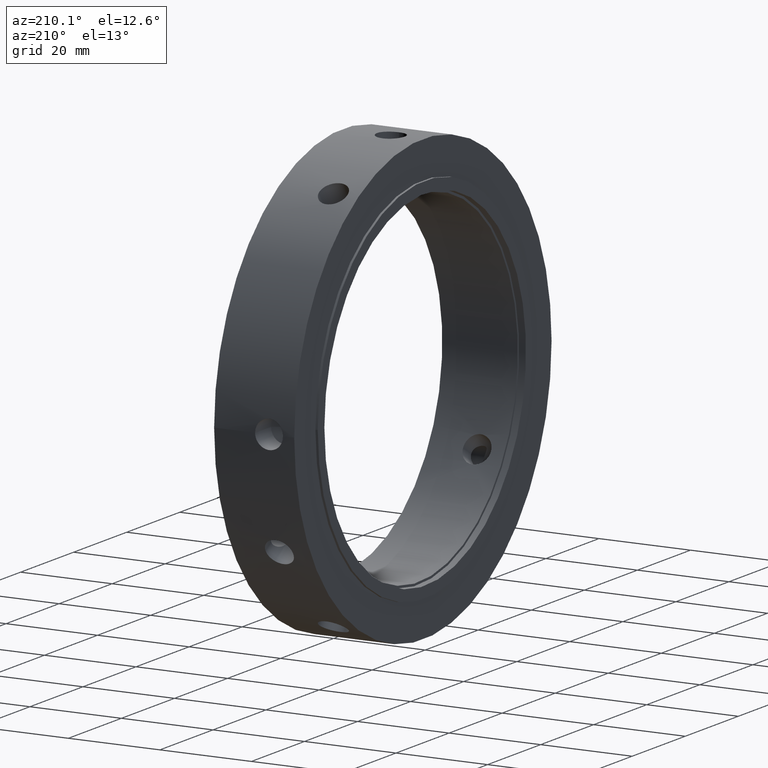
[diagram: clean part render]
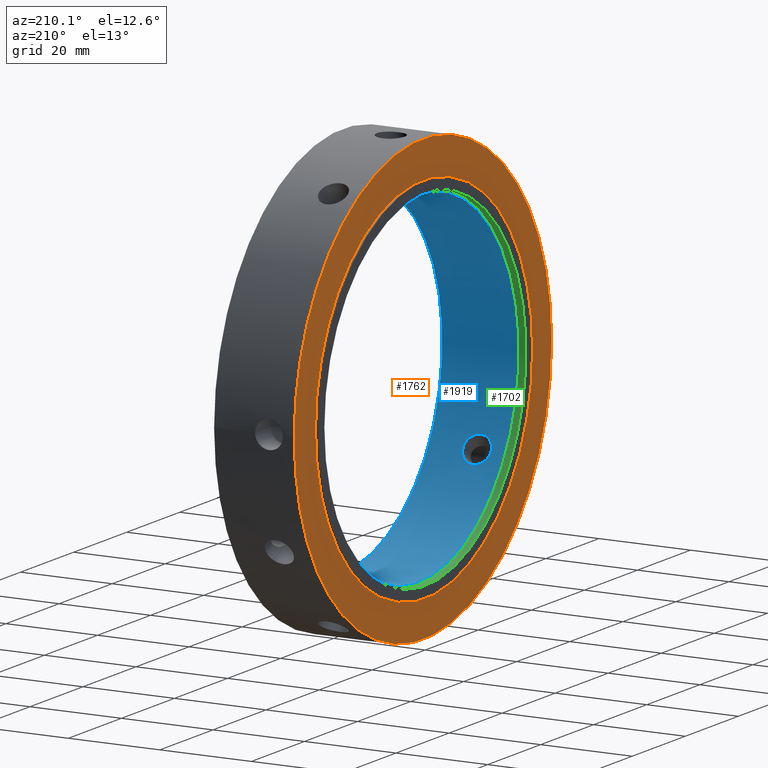
[diagram: same view with three faces highlighted in distinct colors, each labeled with its STEP entity id]
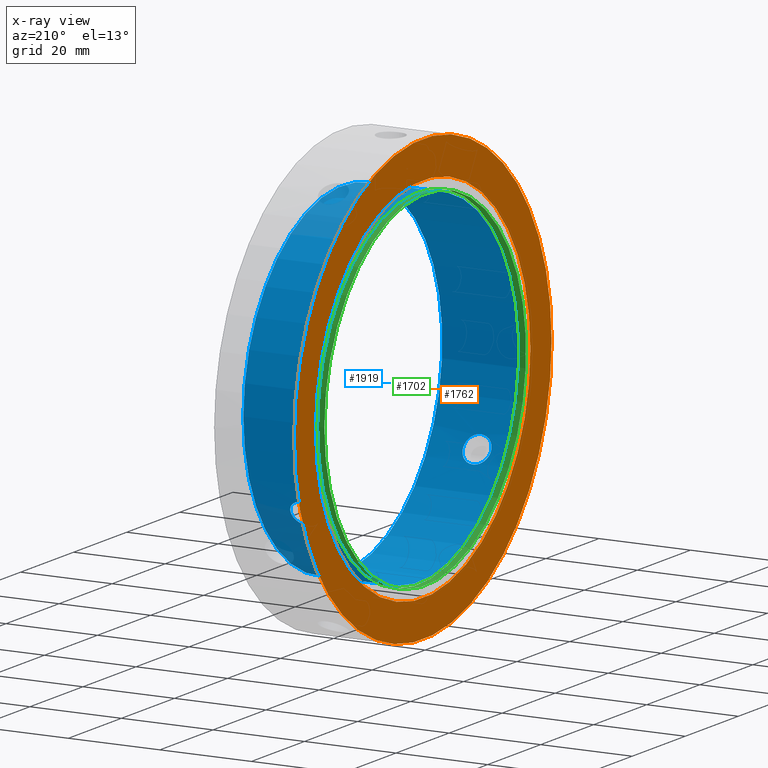
[diagram: x-ray of the same camera — body ghosted, the three highlighted faces saturated]
A machine part, auxiliary view with three faces highlighted in distinct colors.
The next image is the same camera in x-ray (body ghosted, the three faces saturated) — at least one of them is partly hidden behind the body in this view.
Their STEP definitions:

[orange] entity #1762 — the highlighted planar face has unit normal (-1, 0, 0).
#1728=CARTESIAN_POINT('',(0.499999999999989,40.5,0.0));
#1729=VERTEX_POINT('',#1728);
#1730=CARTESIAN_POINT('',(0.499999999999989,0.0,0.0));
#1731=DIRECTION('',(1.0,0.0,0.0));
#1732=DIRECTION('',(0.0,1.0,0.0));
#1733=AXIS2_PLACEMENT_3D('',#1730,#1731,#1732);
#1734=CIRCLE('',#1733,40.5);
#1735=EDGE_CURVE('',#1729,#1729,#1734,.T.);
#1743=CARTESIAN_POINT('',(0.499999999999989,44.5,0.0));
#1744=DIRECTION('',(-1.0,0.0,0.0));
#1745=DIRECTION('',(0.0,0.0,1.0));
#1746=AXIS2_PLACEMENT_3D('',#1743,#1744,#1745);
#1747=PLANE('',#1746);
#1748=CARTESIAN_POINT('',(0.499999999999989,48.500000000000007,0.0));
#1749=VERTEX_POINT('',#1748);
#1750=CARTESIAN_POINT('',(0.499999999999989,0.0,0.0));
#1751=DIRECTION('',(1.0,0.0,0.0));
#1752=DIRECTION('',(0.0,1.0,0.0));
#1753=AXIS2_PLACEMENT_3D('',#1750,#1751,#1752);
#1754=CIRCLE('',#1753,48.500000000000007);
#1755=EDGE_CURVE('',#1749,#1749,#1754,.T.);
#1756=ORIENTED_EDGE('',*,*,#1755,.F.);
#1757=EDGE_LOOP('',(#1756));
#1758=FACE_OUTER_BOUND('',#1757,.T.);
#1759=ORIENTED_EDGE('',*,*,#1735,.T.);
#1760=EDGE_LOOP('',(#1759));
#1761=FACE_BOUND('',#1760,.T.);
#1762=ADVANCED_FACE('',(#1758,#1761),#1747,.T.);

[blue] entity #1919 — the highlighted cylindrical surface (bore or boss wall) has radius 37.5 mm, axis along (1, 0, 0).
#1299=CARTESIAN_POINT('',(7.499999999999987,33.893358392108787,-16.046502949367778));
#1300=VERTEX_POINT('',#1299);
#1301=CARTESIAN_POINT('',(7.499999999999987,33.893358392108787,-16.046502949367763));
#1302=CARTESIAN_POINT('',(7.883146705738793,33.893358392108787,-16.046502949367763));
#1303=CARTESIAN_POINT('',(8.291716020119942,33.860682759014232,-16.116095375475897));
#1304=CARTESIAN_POINT('',(9.043122725491655,33.725340298830858,-16.397432381819709));
#1305=CARTESIAN_POINT('',(9.38597453830624,33.622383589629543,-16.608998887362141));
#1306=CARTESIAN_POINT('',(9.927376425008257,33.378692571843644,-17.093460862698713));
#1307=CARTESIAN_POINT('',(10.162077059469329,33.221639229656503,-17.398677451379385));
#1308=CARTESIAN_POINT('',(10.473393522908822,32.866203643286994,-18.061117026326354));
#1309=CARTESIAN_POINT('',(10.549999999999988,32.667525710347391,-18.418185712115751));
#1310=CARTESIAN_POINT('',(10.549999999999983,32.284379573485509,-19.081814287884271));
#1311=CARTESIAN_POINT('',(10.473393522908822,32.074487987165774,-19.432408767876048));
#1312=CARTESIAN_POINT('',(10.162077059469329,31.678516279974289,-20.071444802554534));
#1313=CARTESIAN_POINT('',(9.927376425008252,31.492717631613971,-20.36006528097818));
#1314=CARTESIAN_POINT('',(9.38597453830624,31.195006762697854,-20.813338880723144));
#1315=CARTESIAN_POINT('',(9.043122725491656,31.063263148908863,-21.008285259152753));
#1316=CARTESIAN_POINT('',(8.291716020119944,30.887289384482145,-21.266163771054142));
#1317=CARTESIAN_POINT('',(7.883146705738793,30.843358392108801,-21.329257912452846));
#1318=CARTESIAN_POINT('',(7.116853294261181,30.843358392108801,-21.329257912452846));
#1319=CARTESIAN_POINT('',(6.708283979880028,30.887289384482145,-21.266163771054142));
#1320=CARTESIAN_POINT('',(5.956877274508317,31.063263148908863,-21.008285259152753));
#1321=CARTESIAN_POINT('',(5.614025461693735,31.195006762697854,-20.813338880723144));
#1322=CARTESIAN_POINT('',(5.072623574991722,31.492717631613971,-20.360065280978176));
#1323=CARTESIAN_POINT('',(4.837922940530644,31.678516279974293,-20.071444802554534));
#1324=CARTESIAN_POINT('',(4.526606477091153,32.074487987165774,-19.432408767876044));
#1325=CARTESIAN_POINT('',(4.449999999999988,32.284379573485509,-19.081814287884271));
#1326=CARTESIAN_POINT('',(4.449999999999986,32.667525710347391,-18.418185712115747));
#1327=CARTESIAN_POINT('',(4.526606477091152,32.866203643286994,-18.06111702632635));
#1328=CARTESIAN_POINT('',(4.837922940530644,33.221639229656503,-17.398677451379385));
#1329=CARTESIAN_POINT('',(5.072623574991718,33.378692571843644,-17.093460862698713));
#1330=CARTESIAN_POINT('',(5.614025461693734,33.622383589629543,-16.608998887362141));
#1331=CARTESIAN_POINT('',(5.956877274508319,33.725340298830858,-16.397432381819709));
#1332=CARTESIAN_POINT('',(6.708283979880031,33.860682759014232,-16.116095375475897));
#1333=CARTESIAN_POINT('',(7.116853294261181,33.893358392108787,-16.046502949367763));
#1334=CARTESIAN_POINT('',(7.499999999999987,33.893358392108787,-16.046502949367763));
#1335=B_SPLINE_CURVE_WITH_KNOTS('',3,(#1301,#1302,#1303,#1304,#1305,#1306,#1307,#1308,#1309,#1310,#1311,#1312,#1313,#1314,#1315,#1316,#1317,#1318,#1319,#1320,#1321,#1322,#1323,#1324,#1325,#1326,#1327,#1328,#1329,#1330,#1331,#1332,#1333,#1334),.UNSPECIFIED.,.T.,.U.,(4,2,2,2,2,2,2,2,2,2,2,2,2,2,2,2,4),(0.0,0.114944011721642,0.229888023443284,0.344831864501849,0.459775705560414,0.574719546618979,0.689663387677544,0.804607399399186,0.919551411120828,1.03449542284247,1.149439434564112,1.264383275622676,1.379327116681241,1.494270957739806,1.609214798798371,1.724158810520013,1.839102822241655),.UNSPECIFIED.);
#1336=EDGE_CURVE('',#1300,#1300,#1335,.T.);
#1456=CARTESIAN_POINT('',(7.499999999999987,-30.843358392108801,-21.329257912452828));
#1457=VERTEX_POINT('',#1456);
#1458=CARTESIAN_POINT('',(7.499999999999986,-30.843358392108804,-21.329257912452825));
#1459=CARTESIAN_POINT('',(7.883146705738792,-30.843358392108804,-21.329257912452825));
#1460=CARTESIAN_POINT('',(8.291716020119944,-30.887289384482152,-21.266163771054131));
#1461=CARTESIAN_POINT('',(9.043122725491656,-31.063263148908874,-21.008285259152739));
#1462=CARTESIAN_POINT('',(9.38597453830624,-31.195006762697854,-20.813338880723123));
#1463=CARTESIAN_POINT('',(9.927376425008252,-31.492717631613964,-20.360065280978155));
#1464=CARTESIAN_POINT('',(10.162077059469333,-31.678516279974303,-20.07144480255452));
#1465=CARTESIAN_POINT('',(10.47339352290882,-32.074487987165789,-19.432408767876026));
#1466=CARTESIAN_POINT('',(10.549999999999983,-32.284379573485509,-19.081814287884246));
#1467=CARTESIAN_POINT('',(10.549999999999988,-32.667525710347398,-18.418185712115729));
#1468=CARTESIAN_POINT('',(10.47339352290882,-32.866203643287008,-18.06111702632634));
#1469=CARTESIAN_POINT('',(10.162077059469333,-33.221639229656518,-17.398677451379374));
#1470=CARTESIAN_POINT('',(9.927376425008255,-33.378692571843629,-17.093460862698695));
#1471=CARTESIAN_POINT('',(9.385974538306241,-33.622383589629536,-16.608998887362119));
#1472=CARTESIAN_POINT('',(9.04312272549166,-33.725340298830865,-16.397432381819694));
#1473=CARTESIAN_POINT('',(8.291716020119948,-33.860682759014239,-16.116095375475883));
#1474=CARTESIAN_POINT('',(7.883146705738793,-33.893358392108787,-16.046502949367746));
#1475=CARTESIAN_POINT('',(7.116853294261181,-33.893358392108787,-16.046502949367746));
#1476=CARTESIAN_POINT('',(6.708283979880027,-33.860682759014239,-16.116095375475883));
#1477=CARTESIAN_POINT('',(5.956877274508314,-33.725340298830865,-16.397432381819694));
#1478=CARTESIAN_POINT('',(5.614025461693732,-33.622383589629536,-16.608998887362119));
#1479=CARTESIAN_POINT('',(5.072623574991719,-33.378692571843629,-17.093460862698695));
#1480=CARTESIAN_POINT('',(4.837922940530638,-33.221639229656518,-17.398677451379378));
#1481=CARTESIAN_POINT('',(4.526606477091151,-32.866203643287008,-18.061117026326347));
#1482=CARTESIAN_POINT('',(4.449999999999986,-32.667525710347391,-18.418185712115729));
#1483=CARTESIAN_POINT('',(4.449999999999989,-32.284379573485509,-19.081814287884249));
#1484=CARTESIAN_POINT('',(4.526606477091152,-32.074487987165782,-19.432408767876034));
#1485=CARTESIAN_POINT('',(4.837922940530643,-31.678516279974296,-20.07144480255452));
#1486=CARTESIAN_POINT('',(5.072623574991722,-31.492717631613971,-20.360065280978155));
#1487=CARTESIAN_POINT('',(5.614025461693736,-31.195006762697854,-20.813338880723123));
#1488=CARTESIAN_POINT('',(5.956877274508322,-31.063263148908877,-21.008285259152743));
#1489=CARTESIAN_POINT('',(6.708283979880032,-30.887289384482159,-21.266163771054135));
#1490=CARTESIAN_POINT('',(7.116853294261181,-30.843358392108801,-21.329257912452828));
#1491=CARTESIAN_POINT('',(7.499999999999987,-30.843358392108801,-21.329257912452828));
#1492=B_SPLINE_CURVE_WITH_KNOTS('',3,(#1458,#1459,#1460,#1461,#1462,#1463,#1464,#1465,#1466,#1467,#1468,#1469,#1470,#1471,#1472,#1473,#1474,#1475,#1476,#1477,#1478,#1479,#1480,#1481,#1482,#1483,#1484,#1485,#1486,#1487,#1488,#1489,#1490,#1491),.UNSPECIFIED.,.T.,.U.,(4,2,2,2,2,2,2,2,2,2,2,2,2,2,2,2,4),(0.0,0.114944011721642,0.229888023443284,0.344831864501849,0.459775705560414,0.574719546618979,0.689663387677543,0.804607399399185,0.919551411120827,1.034495422842469,1.149439434564112,1.264383275622676,1.379327116681241,1.494270957739806,1.609214798798371,1.724158810520013,1.839102822241655),.UNSPECIFIED.);
#1493=EDGE_CURVE('',#1457,#1457,#1492,.T.);
#1613=CARTESIAN_POINT('',(7.499999999999987,-3.05,37.375760861820588));
#1614=VERTEX_POINT('',#1613);
#1615=CARTESIAN_POINT('',(7.499999999999987,-3.05,37.375760861820595));
#1616=CARTESIAN_POINT('',(7.883146705738793,-3.05,37.375760861820595));
#1617=CARTESIAN_POINT('',(8.291716020119944,-2.973393374532084,37.382259146530032));
#1618=CARTESIAN_POINT('',(9.043122725491656,-2.662077149921995,37.405717640972455));
#1619=CARTESIAN_POINT('',(9.385974538306241,-2.427376826931687,37.422337768085271));
#1620=CARTESIAN_POINT('',(9.927376425008255,-1.885974940229672,37.453526143676882));
#1621=CARTESIAN_POINT('',(10.162077059469333,-1.543122949682215,37.470122253933916));
#1622=CARTESIAN_POINT('',(10.473393522908822,-0.791715656121226,37.493525794202391));
#1623=CARTESIAN_POINT('',(10.549999999999983,-0.383146136861883,37.5));
#1624=CARTESIAN_POINT('',(10.549999999999986,0.383146136861883,37.5));
#1625=CARTESIAN_POINT('',(10.473393522908822,0.791715656121224,37.493525794202391));
#1626=CARTESIAN_POINT('',(10.162077059469333,1.543122949682214,37.470122253933916));
#1627=CARTESIAN_POINT('',(9.927376425008255,1.885974940229672,37.453526143676882));
#1628=CARTESIAN_POINT('',(9.385974538306241,2.427376826931687,37.422337768085271));
#1629=CARTESIAN_POINT('',(9.043122725491656,2.662077149921995,37.405717640972455));
#1630=CARTESIAN_POINT('',(8.291716020119944,2.973393374532084,37.382259146530032));
#1631=CARTESIAN_POINT('',(7.883146705738793,3.05,37.375760861820588));
#1632=CARTESIAN_POINT('',(7.116853294261181,3.05,37.375760861820588));
#1633=CARTESIAN_POINT('',(6.708283979880031,2.973393374532084,37.382259146530032));
#1634=CARTESIAN_POINT('',(5.95687727450832,2.662077149921995,37.405717640972455));
#1635=CARTESIAN_POINT('',(5.614025461693735,2.427376826931687,37.422337768085271));
#1636=CARTESIAN_POINT('',(5.072623574991719,1.885974940229672,37.453526143676882));
#1637=CARTESIAN_POINT('',(4.837922940530643,1.543122949682215,37.470122253933916));
#1638=CARTESIAN_POINT('',(4.526606477091152,0.791715656121225,37.493525794202391));
#1639=CARTESIAN_POINT('',(4.449999999999987,0.383146136861884,37.5));
#1640=CARTESIAN_POINT('',(4.449999999999987,-0.383146136861883,37.5));
#1641=CARTESIAN_POINT('',(4.526606477091152,-0.791715656121224,37.493525794202391));
#1642=CARTESIAN_POINT('',(4.837922940530643,-1.543122949682214,37.470122253933916));
#1643=CARTESIAN_POINT('',(5.072623574991719,-1.885974940229672,37.453526143676882));
#1644=CARTESIAN_POINT('',(5.614025461693732,-2.427376826931686,37.422337768085264));
#1645=CARTESIAN_POINT('',(5.956877274508315,-2.662077149921993,37.405717640972455));
#1646=CARTESIAN_POINT('',(6.708283979880028,-2.973393374532083,37.382259146530032));
#1647=CARTESIAN_POINT('',(7.116853294261178,-3.05,37.375760861820595));
#1648=CARTESIAN_POINT('',(7.499999999999987,-3.05,37.375760861820595));
#1649=B_SPLINE_CURVE_WITH_KNOTS('',3,(#1615,#1616,#1617,#1618,#1619,#1620,#1621,#1622,#1623,#1624,#1625,#1626,#1627,#1628,#1629,#1630,#1631,#1632,#1633,#1634,#1635,#1636,#1637,#1638,#1639,#1640,#1641,#1642,#1643,#1644,#1645,#1646,#1647,#1648),.UNSPECIFIED.,.T.,.U.,(4,2,2,2,2,2,2,2,2,2,2,2,2,2,2,2,4),(0.0,0.114944011721642,0.229888023443284,0.344831864501849,0.459775705560414,0.574719546618979,0.689663387677544,0.804607399399186,0.919551411120828,1.03449542284247,1.149439434564112,1.264383275622677,1.379327116681242,1.494270957739807,1.609214798798372,1.724158810520013,1.839102822241655),.UNSPECIFIED.);
#1650=EDGE_CURVE('',#1614,#1614,#1649,.T.);
#1671=CARTESIAN_POINT('',(1.499999999999989,37.5,0.0));
#1672=VERTEX_POINT('',#1671);
#1673=CARTESIAN_POINT('',(1.499999999999989,0.0,0.0));
#1674=DIRECTION('',(1.0,0.0,0.0));
#1675=DIRECTION('',(0.0,1.0,0.0));
#1676=AXIS2_PLACEMENT_3D('',#1673,#1674,#1675);
#1677=CIRCLE('',#1676,37.5);
#1678=EDGE_CURVE('',#1672,#1672,#1677,.T.);
#1887=CARTESIAN_POINT('',(17.999999999999993,37.5,0.0));
#1888=VERTEX_POINT('',#1887);
#1889=CARTESIAN_POINT('',(17.999999999999993,0.0,0.0));
#1890=DIRECTION('',(1.0,0.0,0.0));
#1891=DIRECTION('',(0.0,1.0,0.0));
#1892=AXIS2_PLACEMENT_3D('',#1889,#1890,#1891);
#1893=CIRCLE('',#1892,37.5);
#1894=EDGE_CURVE('',#1888,#1888,#1893,.T.);
#1899=CARTESIAN_POINT('',(9.749999999999989,0.0,0.0));
#1900=DIRECTION('',(1.0,0.0,0.0));
#1901=DIRECTION('',(0.0,1.0,0.0));
#1902=AXIS2_PLACEMENT_3D('',#1899,#1900,#1901);
#1903=CYLINDRICAL_SURFACE('',#1902,37.5);
#1904=ORIENTED_EDGE('',*,*,#1678,.F.);
#1905=EDGE_LOOP('',(#1904));
#1906=FACE_OUTER_BOUND('',#1905,.T.);
#1907=ORIENTED_EDGE('',*,*,#1336,.T.);
#1908=EDGE_LOOP('',(#1907));
#1909=FACE_BOUND('',#1908,.T.);
#1910=ORIENTED_EDGE('',*,*,#1493,.T.);
#1911=EDGE_LOOP('',(#1910));
#1912=FACE_BOUND('',#1911,.T.);
#1913=ORIENTED_EDGE('',*,*,#1650,.T.);
#1914=EDGE_LOOP('',(#1913));
#1915=FACE_BOUND('',#1914,.T.);
#1916=ORIENTED_EDGE('',*,*,#1894,.T.);
#1917=EDGE_LOOP('',(#1916));
#1918=FACE_BOUND('',#1917,.T.);
#1919=ADVANCED_FACE('',(#1906,#1909,#1912,#1915,#1918),#1903,.F.);

[green] entity #1702 — the highlighted cylindrical surface (bore or boss wall) has radius 38 mm, axis along (1, 0, 0).
#1660=CARTESIAN_POINT('',(1.499999999999989,38.0,0.0));
#1661=VERTEX_POINT('',#1660);
#1662=CARTESIAN_POINT('',(1.499999999999989,0.0,0.0));
#1663=DIRECTION('',(1.0,0.0,0.0));
#1664=DIRECTION('',(0.0,1.0,0.0));
#1665=AXIS2_PLACEMENT_3D('',#1662,#1663,#1664);
#1666=CIRCLE('',#1665,38.0);
#1667=EDGE_CURVE('',#1661,#1661,#1666,.T.);
#1683=CARTESIAN_POINT('',(0.749999999999989,0.0,0.0));
#1684=DIRECTION('',(1.0,0.0,0.0));
#1685=DIRECTION('',(0.0,1.0,0.0));
#1686=AXIS2_PLACEMENT_3D('',#1683,#1684,#1685);
#1687=CYLINDRICAL_SURFACE('',#1686,38.0);
#1688=CARTESIAN_POINT('',(-1.082467E-014,38.0,0.0));
#1689=VERTEX_POINT('',#1688);
#1690=CARTESIAN_POINT('',(-1.082467E-014,0.0,0.0));
#1691=DIRECTION('',(1.0,0.0,0.0));
#1692=DIRECTION('',(0.0,1.0,0.0));
#1693=AXIS2_PLACEMENT_3D('',#1690,#1691,#1692);
#1694=CIRCLE('',#1693,38.0);
#1695=EDGE_CURVE('',#1689,#1689,#1694,.T.);
#1696=ORIENTED_EDGE('',*,*,#1695,.F.);
#1697=EDGE_LOOP('',(#1696));
#1698=FACE_OUTER_BOUND('',#1697,.T.);
#1699=ORIENTED_EDGE('',*,*,#1667,.T.);
#1700=EDGE_LOOP('',(#1699));
#1701=FACE_BOUND('',#1700,.T.);
#1702=ADVANCED_FACE('',(#1698,#1701),#1687,.F.);